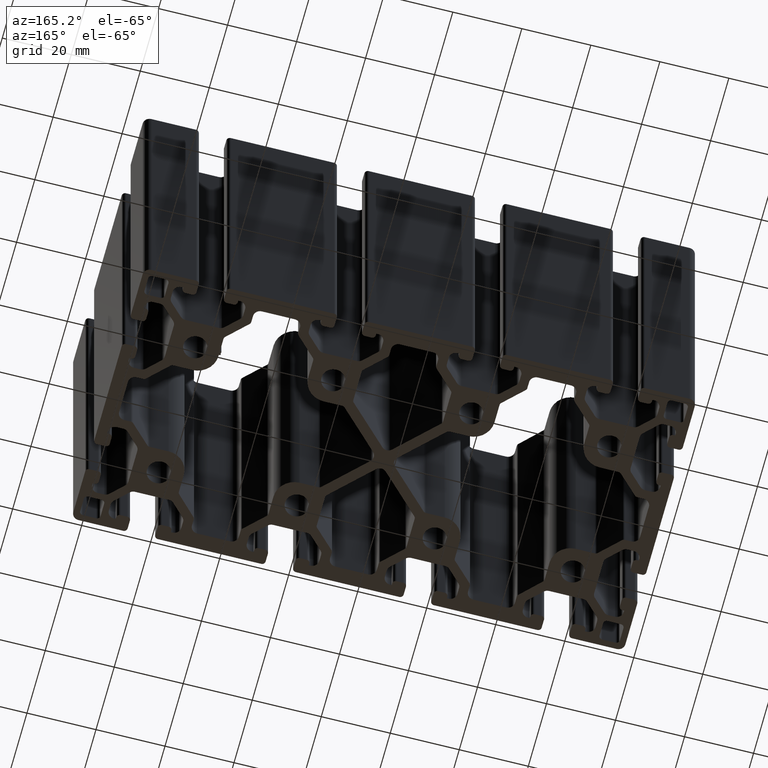
[diagram: clean part render]
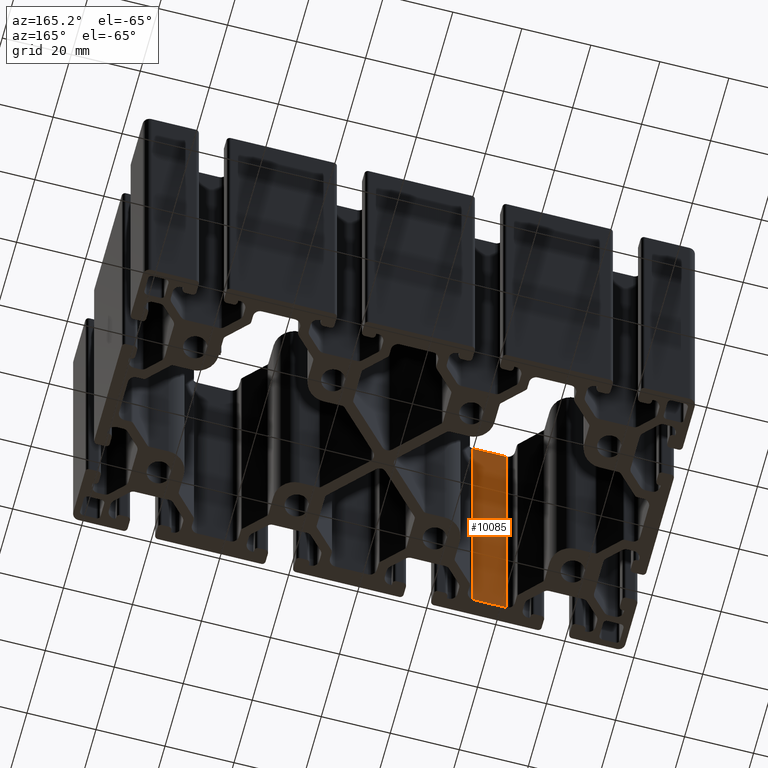
[diagram: same view with one face highlighted and labeled with its STEP entity id]
A machine part, auxiliary view. The second image highlights one B-rep face of the part: STEP entity #10085.
In plain terms, the highlighted planar face has unit normal (0, 1, 0).
Its self-contained STEP definition (entity closure, byte-faithful):
#249=PLANE('',#11076);
#766=FACE_OUTER_BOUND('',#1311,.T.);
#1311=EDGE_LOOP('',(#9167,#9168,#9169,#9170));
#1617=LINE('',#15108,#2634);
#1877=LINE('',#16085,#2894);
#2328=LINE('',#17029,#3345);
#2329=LINE('',#17031,#3346);
#2634=VECTOR('',#11878,9.60000001000013);
#2894=VECTOR('',#12600,9.60000001000013);
#3345=VECTOR('',#13959,100.);
#3346=VECTOR('',#13962,100.);
#4365=VERTEX_POINT('',#15105);
#4366=VERTEX_POINT('',#15107);
#4851=VERTEX_POINT('',#16082);
#4852=VERTEX_POINT('',#16084);
#5375=EDGE_CURVE('',#4366,#4365,#1617,.T.);
#5865=EDGE_CURVE('',#4851,#4852,#1877,.T.);
#6336=EDGE_CURVE('',#4366,#4851,#2328,.T.);
#6337=EDGE_CURVE('',#4365,#4852,#2329,.T.);
#9167=ORIENTED_EDGE('',*,*,#5865,.F.);
#9168=ORIENTED_EDGE('',*,*,#6336,.F.);
#9169=ORIENTED_EDGE('',*,*,#5375,.T.);
#9170=ORIENTED_EDGE('',*,*,#6337,.T.);
#10085=ADVANCED_FACE('',(#766),#249,.T.);
#11076=AXIS2_PLACEMENT_3D('',#17030,#13960,#13961);
#11878=DIRECTION('',(1.,0.,0.));
#12600=DIRECTION('',(1.,0.,0.));
#13959=DIRECTION('',(0.,0.,-1.));
#13960=DIRECTION('center_axis',(0.,1.,0.));
#13961=DIRECTION('ref_axis',(0.,0.,1.));
#13962=DIRECTION('',(0.,0.,-1.));
#15105=CARTESIAN_POINT('',(-32.2502525310282,-35.4999999844989,100.));
#15107=CARTESIAN_POINT('',(-41.8502525410283,-35.4999999844989,100.));
#15108=CARTESIAN_POINT('',(-41.8502525410283,-35.4999999844989,100.));
#16082=CARTESIAN_POINT('',(-41.8502525410283,-35.4999999844989,0.));
#16084=CARTESIAN_POINT('',(-32.2502525310282,-35.4999999844989,0.));
#16085=CARTESIAN_POINT('',(-41.8502525410283,-35.4999999844989,0.));
#17029=CARTESIAN_POINT('',(-41.8502525410283,-35.4999999844989,100.));
#17030=CARTESIAN_POINT('Origin',(-31.7702525305282,-35.4999999844989,-5.));
#17031=CARTESIAN_POINT('',(-32.2502525310282,-35.4999999844989,100.));